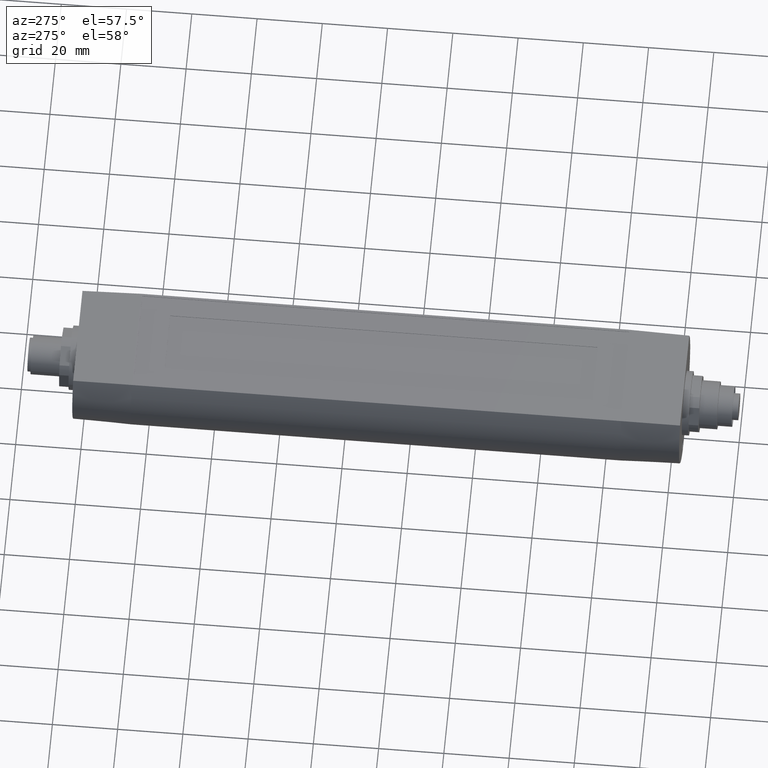
[diagram: clean part render]
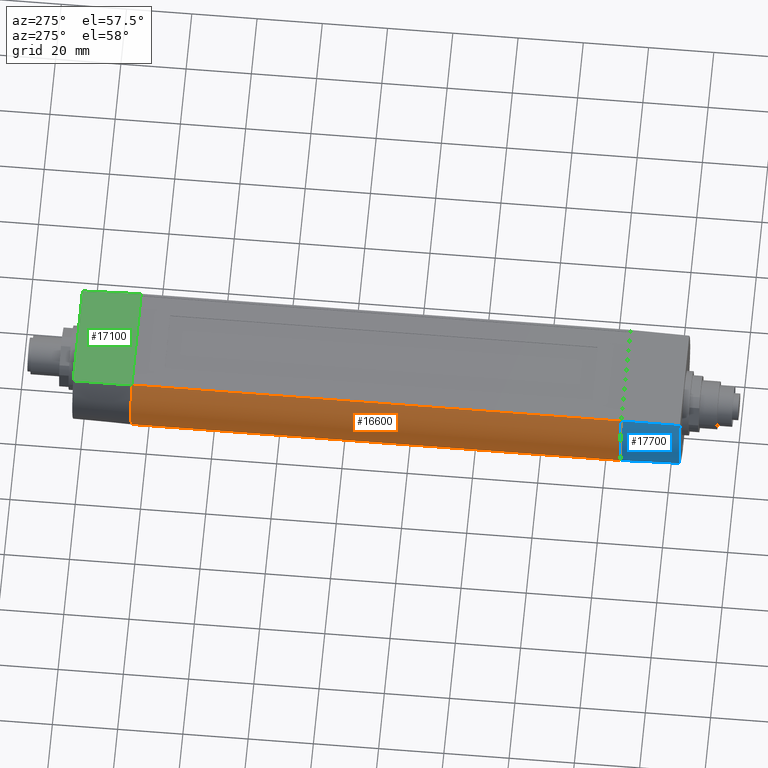
[diagram: same view with three faces highlighted in distinct colors, each labeled with its STEP entity id]
A machine part, auxiliary view with three faces highlighted in distinct colors.
Their STEP definitions:

[orange] entity #16600 — the highlighted cylindrical surface (partial cylindrical patch) has radius 20 mm, axis along (0, -1, 0).
#14830=CARTESIAN_POINT('',(-6.95970545353753,-18.75,-75.));
#14840=VERTEX_POINT('',#14830);
#15090=CARTESIAN_POINT('',(-6.95970545353749,-18.75,-75.5000000002358));
#15100=DIRECTION('',(0.,0.,1.));
#15110=VECTOR('',#15100,1.);
#15120=LINE('',#15090,#15110);
#15130=CARTESIAN_POINT('',(-6.95970545353752,-18.75,74.9999999999999));
#15140=VERTEX_POINT('',#15130);
#15150=EDGE_CURVE('',#14840,#15140,#15120,.T.);
#15900=CARTESIAN_POINT('',(-16.5698521417664,11.2,-75.));
#15910=VERTEX_POINT('',#15900);
#15990=CARTESIAN_POINT('',(-16.5698521417664,11.2,75.));
#16000=VERTEX_POINT('',#15990);
#16030=CARTESIAN_POINT('',(-16.5698521417664,11.2,-75.5000000002358));
#16040=DIRECTION('',(0.,0.,-1.));
#16050=VECTOR('',#16040,1.);
#16060=LINE('',#16030,#16050);
#16070=EDGE_CURVE('',#16000,#15910,#16060,.T.);
#16370=CARTESIAN_POINT('',(5.32907051820075E-15,1.19904086659517E-14,
-75.5000000002358));
#16380=DIRECTION('',(0.,0.,1.));
#16390=DIRECTION('',(1.,0.,0.));
#16400=AXIS2_PLACEMENT_3D('',#16370,#16380,#16390);
#16410=CYLINDRICAL_SURFACE('',#16400,20.);
#16420=ORIENTED_EDGE('',*,*,#16070,.T.);
#16430=CARTESIAN_POINT('',(2.20085071500134E-13,-1.61093695319497E-14,
74.9999999999886));
#16440=DIRECTION('',(-6.86924452968795E-15,1.16626265454226E-15,1.));
#16450=DIRECTION('',(1.,8.01134335989377E-30,6.86924452968795E-15));
#16460=AXIS2_PLACEMENT_3D('',#16430,#16440,#16450);
#16470=CIRCLE('',#16460,20.0000000000003);
#16480=EDGE_CURVE('',#16000,#15140,#16470,.T.);
#16490=ORIENTED_EDGE('',*,*,#16480,.F.);
#16500=ORIENTED_EDGE('',*,*,#15150,.T.);
#16510=CARTESIAN_POINT('',(5.19843624293478E-14,1.14904835442307E-13,
-75.0000000000696));
#16520=DIRECTION('',(-2.05412229808596E-15,-4.31318083550774E-15,-1.));
#16530=DIRECTION('',(1.,-8.8598009298935E-30,-2.05412229808596E-15));
#16540=AXIS2_PLACEMENT_3D('',#16510,#16520,#16530);
#16550=CIRCLE('',#16540,19.9999999999992);
#16560=EDGE_CURVE('',#14840,#15910,#16550,.T.);
#16570=ORIENTED_EDGE('',*,*,#16560,.F.);
#16580=EDGE_LOOP('',(#16570,#16500,#16490,#16420));
#16590=FACE_OUTER_BOUND('',#16580,.T.);
#16600=ADVANCED_FACE('',(#16590),#16410,.T.);

[blue] entity #17700 — the highlighted conical surface has half-angle 1.4 deg.
#15130=CARTESIAN_POINT('',(-6.95970545353752,-18.75,74.9999999999999));
#15140=VERTEX_POINT('',#15130);
#15990=CARTESIAN_POINT('',(-16.5698521417664,11.2,75.));
#16000=VERTEX_POINT('',#15990);
#16430=CARTESIAN_POINT('',(2.20085071500134E-13,-1.61093695319497E-14,
74.9999999999886));
#16440=DIRECTION('',(-6.86924452968795E-15,1.16626265454226E-15,1.));
#16450=DIRECTION('',(1.,8.01134335989377E-30,6.86924452968795E-15));
#16460=AXIS2_PLACEMENT_3D('',#16430,#16440,#16450);
#16470=CIRCLE('',#16460,20.0000000000003);
#16480=EDGE_CURVE('',#16000,#15140,#16470,.T.);
#17370=CARTESIAN_POINT('',(4.41034525985885E-13,-4.52606743559496E-14,
74.5491896177804));
#17380=DIRECTION('',(1.37384890593759E-14,-2.33252530908452E-15,-1.));
#17390=DIRECTION('',(-1.,0.,-1.37384890593759E-14));
#17400=AXIS2_PLACEMENT_3D('',#17370,#17380,#17390);
#17410=CONICAL_SURFACE('',#17400,20.0110175684286,0.0244346095279339);
#17420=CARTESIAN_POINT('',(-16.3345515631188,10.7600894754653,93.));
#17430=CARTESIAN_POINT('',(-16.413549912574,10.9067261359855,
87.0000074056998));
#17440=CARTESIAN_POINT('',(-16.4919754200436,11.0533629813374,
81.0000072485603));
#17450=CARTESIAN_POINT('',(-16.5698521417655,11.1999999999985,
75.0000000000601));
#17460=B_SPLINE_CURVE_WITH_KNOTS('',3,(#17420,#17430,#17440,#17450),
.UNSPECIFIED.,.F.,.F.,(4,4),(0.,18.0069122704985),.UNSPECIFIED.);
#17470=CARTESIAN_POINT('',(-16.3345515631189,10.7600894754653,93.));
#17480=VERTEX_POINT('',#17470);
#17490=EDGE_CURVE('',#17480,#16000,#17460,.T.);
#17500=ORIENTED_EDGE('',*,*,#17490,.T.);
#17510=CARTESIAN_POINT('',(1.87548269413135E-13,-2.22369216630175E-15,
93.0000000000005));
#17520=DIRECTION('',(-1.37384890593759E-14,2.33252530908452E-15,1.));
#17530=DIRECTION('',(-1.,0.,-1.37384890593759E-14));
#17540=AXIS2_PLACEMENT_3D('',#17510,#17520,#17530);
#17550=CIRCLE('',#17540,19.5600894754654);
#17560=CARTESIAN_POINT('',(-6.88024154290118,-18.3100894754653,93.));
#17570=VERTEX_POINT('',#17560);
#17580=EDGE_CURVE('',#17480,#17570,#17550,.T.);
#17590=ORIENTED_EDGE('',*,*,#17580,.F.);
#17600=CARTESIAN_POINT('',(-6.95970545354292,-18.7499999999992,
74.999999999999));
#17610=CARTESIAN_POINT('',(-6.93336869641478,-18.6033631422292,
81.0000006652515));
#17620=CARTESIAN_POINT('',(-6.90688247259933,-18.4567263004351,
87.0000006768102));
#17630=CARTESIAN_POINT('',(-6.88024154290653,-18.3100894754644,
93.0000000000011));
#17640=B_SPLINE_CURVE_WITH_KNOTS('',3,(#17600,#17610,#17620,#17630),
.UNSPECIFIED.,.F.,.F.,(4,4),(0.,18.0055501421523),.UNSPECIFIED.);
#17650=EDGE_CURVE('',#15140,#17570,#17640,.T.);
#17660=ORIENTED_EDGE('',*,*,#17650,.T.);
#17670=ORIENTED_EDGE('',*,*,#16480,.T.);
#17680=EDGE_LOOP('',(#17670,#17660,#17590,#17500));
#17690=FACE_OUTER_BOUND('',#17680,.T.);
#17700=ADVANCED_FACE('',(#17690),#17410,.T.);

[green] entity #17100 — the highlighted planar face has unit normal (0, 0.0244, 0.9997).
#9490=CARTESIAN_POINT('',(0.,10.7600894754653,-93.));
#9500=DIRECTION('',(-1.,0.,0.));
#9510=VECTOR('',#9500,1.);
#9520=LINE('',#9490,#9510);
#9530=CARTESIAN_POINT('',(16.3345515631189,10.7600894754653,-93.));
#9540=VERTEX_POINT('',#9530);
#9550=CARTESIAN_POINT('',(-16.3345515631189,10.7600894754653,-93.));
#9560=VERTEX_POINT('',#9550);
#9570=EDGE_CURVE('',#9540,#9560,#9520,.T.);
#15510=CARTESIAN_POINT('',(16.5698521417664,11.2,-74.9999999999999));
#15520=VERTEX_POINT('',#15510);
#15860=CARTESIAN_POINT('',(0.,11.2,-75.));
#15870=DIRECTION('',(-1.,0.,0.));
#15880=VECTOR('',#15870,1.);
#15890=LINE('',#15860,#15880);
#15900=CARTESIAN_POINT('',(-16.5698521417664,11.2,-75.));
#15910=VERTEX_POINT('',#15900);
#15920=EDGE_CURVE('',#15520,#15910,#15890,.T.);
#16750=CARTESIAN_POINT('',(-16.5698521417659,11.1999999999991,
-75.0000000000372));
#16760=CARTESIAN_POINT('',(-16.4919754200439,11.0533629813378,
-81.0000072485449));
#16770=CARTESIAN_POINT('',(-16.4135499125742,10.9067261359857,
-87.0000074056919));
#16780=CARTESIAN_POINT('',(-16.3345515631189,10.7600894754653,
-92.9999999999996));
#16790=B_SPLINE_CURVE_WITH_KNOTS('',3,(#16750,#16760,#16770,#16780),
.UNSPECIFIED.,.F.,.F.,(4,4),(0.,18.006912270521),.UNSPECIFIED.);
#16800=EDGE_CURVE('',#15910,#9560,#16790,.T.);
#16930=CARTESIAN_POINT('',(17.3983485288547,11.210997855467,
-74.5499962211283));
#16940=DIRECTION('',(0.,0.999701489781183,-0.0244321781526532));
#16950=DIRECTION('',(0.,-0.0244321781526532,-0.999701489781183));
#16960=AXIS2_PLACEMENT_3D('',#16930,#16940,#16950);
#16970=PLANE('',#16960);
#16980=ORIENTED_EDGE('',*,*,#16800,.F.);
#16990=ORIENTED_EDGE('',*,*,#9570,.T.);
#17000=CARTESIAN_POINT('',(16.3345515631189,10.7600894754653,
-92.9999999999993));
#17010=CARTESIAN_POINT('',(16.4135499125741,10.9067261359855,
-87.0000074056997));
#17020=CARTESIAN_POINT('',(16.4919754200436,11.0533629813374,
-81.0000072485607));
#17030=CARTESIAN_POINT('',(16.5698521417655,11.1999999999985,
-75.0000000000612));
#17040=B_SPLINE_CURVE_WITH_KNOTS('',3,(#17000,#17010,#17020,#17030),
.UNSPECIFIED.,.F.,.F.,(4,4),(0.,18.0069122704967),.UNSPECIFIED.);
#17050=EDGE_CURVE('',#9540,#15520,#17040,.T.);
#17060=ORIENTED_EDGE('',*,*,#17050,.F.);
#17070=ORIENTED_EDGE('',*,*,#15920,.F.);
#17080=EDGE_LOOP('',(#17070,#17060,#16990,#16980));
#17090=FACE_OUTER_BOUND('',#17080,.T.);
#17100=ADVANCED_FACE('',(#17090),#16970,.T.);